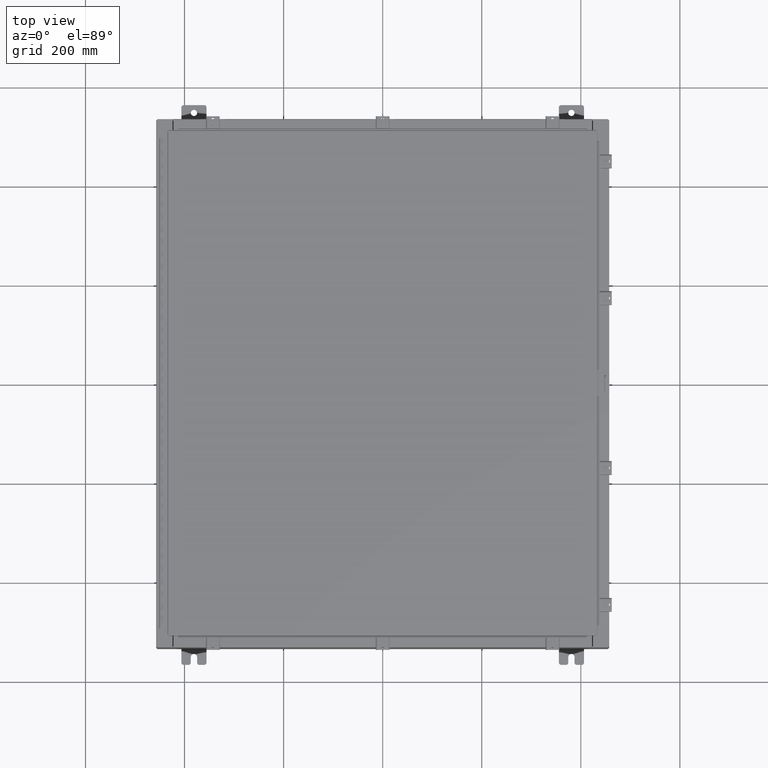
[diagram: clean part render]
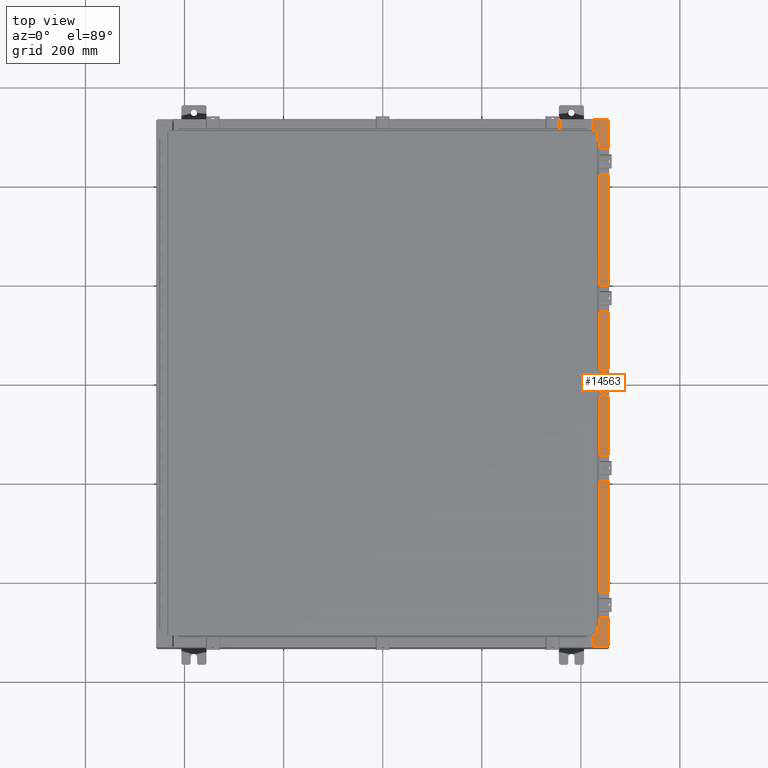
[diagram: same view with one face highlighted and labeled with its STEP entity id]
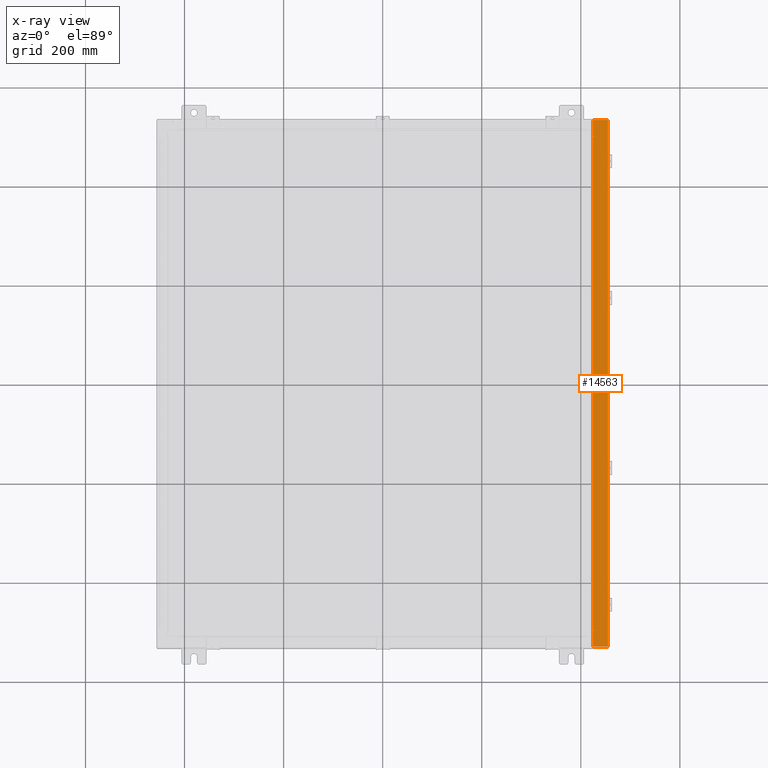
[diagram: x-ray of the same camera — body ghosted, the highlighted face saturated]
A machine part, top view. The second image highlights one B-rep face of the part: STEP entity #14563.
The next image is the same camera in x-ray: the body ghosted, the highlighted face saturated — about 0% of this face is hidden behind the body in this view.
In plain terms, the highlighted planar face has unit normal (-0, -0, -1).
Its self-contained STEP definition (entity closure, byte-faithful):
#519 = DIRECTION ( 'NONE',  ( 0.0000000000000000000, -1.000000000000000000, 2.611047864225856100E-017 ) ) ;
#613 = VECTOR ( 'NONE', #50008, 39.37007874015748100 ) ;
#768 = ORIENTED_EDGE ( 'NONE', *, *, #17446, .F. ) ;
#1595 = VECTOR ( 'NONE', #41818, 39.37007874015748100 ) ;
#1793 = EDGE_CURVE ( 'NONE', #47683, #48953, #27479, .T. ) ;
#2199 = EDGE_CURVE ( 'NONE', #8966, #16888, #39102, .T. ) ;
#2587 = DIRECTION ( 'NONE',  ( 1.000000000000000000, 0.0000000000000000000, 0.0000000000000000000 ) ) ;
#2992 = CARTESIAN_POINT ( 'NONE',  ( 16.69970000000003200, -19.63110000000000000, 7.925300000000008900 ) ) ;
#4834 = VERTEX_POINT ( 'NONE', #38482 ) ;
#5262 = CARTESIAN_POINT ( 'NONE',  ( 16.75005000000003400, -19.61242499999999800, 7.925300000000009800 ) ) ;
#5358 = VECTOR ( 'NONE', #22720, 39.37007874015748100 ) ;
#5363 = DIRECTION ( 'NONE',  ( -1.000000000000000000, 0.0000000000000000000, 0.0000000000000000000 ) ) ;
#5607 = DIRECTION ( 'NONE',  ( -1.000000000000000000, 4.340572780399910900E-014, -2.170286390199955400E-014 ) ) ;
#5868 = CARTESIAN_POINT ( 'NONE',  ( 17.91230000000002700, -20.92529999999999600, 7.925300000000000900 ) ) ;
#6629 = VECTOR ( 'NONE', #29541, 39.37007874015748100 ) ;
#6764 = EDGE_CURVE ( 'NONE', #23765, #30325, #38711, .T. ) ;
#7224 = EDGE_CURVE ( 'NONE', #43719, #8966, #11016, .T. ) ;
#8638 = AXIS2_PLACEMENT_3D ( 'NONE', #49659, #26072, #2587 ) ;
#8860 = EDGE_CURVE ( 'NONE', #4834, #38101, #15702, .T. ) ;
#8966 = VERTEX_POINT ( 'NONE', #41532 ) ;
#9185 = DIRECTION ( 'NONE',  ( 1.000000000000000000, 0.0000000000000000000, 0.0000000000000000000 ) ) ;
#9770 = CARTESIAN_POINT ( 'NONE',  ( 16.75005000000003400, -19.63109999999999600, 7.925300000000008900 ) ) ;
#10001 = CARTESIAN_POINT ( 'NONE',  ( 16.69970000000003200, 20.92529999999997900, 7.925300000000008900 ) ) ;
#10437 = CARTESIAN_POINT ( 'NONE',  ( 17.91230000000002700, 20.92529999999997500, 7.925300000000000000 ) ) ;
#10683 = CARTESIAN_POINT ( 'NONE',  ( 16.71270000000003400, -19.59375000000000000, 7.925300000000009800 ) ) ;
#10772 = LINE ( 'NONE', #14294, #1595 ) ;
#11016 = LINE ( 'NONE', #41935, #613 ) ;
#11708 = ORIENTED_EDGE ( 'NONE', *, *, #36753, .T. ) ;
#11728 = CARTESIAN_POINT ( 'NONE',  ( 4.972393517345230000E-014, 20.92529999999998600, 7.925300000000111900 ) ) ;
#12003 = VERTEX_POINT ( 'NONE', #14552 ) ;
#12528 = ORIENTED_EDGE ( 'NONE', *, *, #8860, .T. ) ;
#14150 = LINE ( 'NONE', #44708, #44320 ) ;
#14294 = CARTESIAN_POINT ( 'NONE',  ( 16.69970000000003200, 2.069333764128535100E-016, 7.925300000000008900 ) ) ;
#14410 = ORIENTED_EDGE ( 'NONE', *, *, #30887, .F. ) ;
#14552 = CARTESIAN_POINT ( 'NONE',  ( 16.69970000000003200, 19.63109999999997500, 7.925300000000008900 ) ) ;
#14563 = ADVANCED_FACE ( 'NONE', ( #27530 ), #42664, .F. ) ;
#15161 = CARTESIAN_POINT ( 'NONE',  ( 4.972393517345230000E-014, 2.069333764128535100E-016, 7.925300000000111900 ) ) ;
#15540 = VECTOR ( 'NONE', #519, 39.37007874015748100 ) ;
#15702 = LINE ( 'NONE', #33278, #27405 ) ;
#16000 = VERTEX_POINT ( 'NONE', #41984 ) ;
#16232 = LINE ( 'NONE', #40990, #26678 ) ;
#16888 = VERTEX_POINT ( 'NONE', #17289 ) ;
#17034 = LINE ( 'NONE', #5868, #6629 ) ;
#17289 = CARTESIAN_POINT ( 'NONE',  ( 16.75005000000003400, 19.63109999999998200, 7.925300000000007100 ) ) ;
#17446 = EDGE_CURVE ( 'NONE', #48953, #16000, #28896, .T. ) ;
#17611 = DIRECTION ( 'NONE',  ( 1.000000000000000000, 0.0000000000000000000, -6.241167087353087800E-015 ) ) ;
#18893 = ORIENTED_EDGE ( 'NONE', *, *, #2199, .F. ) ;
#19679 = CARTESIAN_POINT ( 'NONE',  ( 17.91230000000002700, -20.92529999999999600, 7.925300000000000900 ) ) ;
#20259 = CARTESIAN_POINT ( 'NONE',  ( 16.71270000000003400, 19.59374999999998200, 7.925300000000009800 ) ) ;
#20774 = ORIENTED_EDGE ( 'NONE', *, *, #7224, .F. ) ;
#21361 = EDGE_CURVE ( 'NONE', #30325, #12003, #36460, .T. ) ;
#21527 = EDGE_CURVE ( 'NONE', #28751, #43719, #29092, .T. ) ;
#22720 = DIRECTION ( 'NONE',  ( 1.000000000000000000, 4.340572780399910900E-014, 2.170286390199955400E-014 ) ) ;
#23063 = DIRECTION ( 'NONE',  ( -1.000000000000000000, 0.0000000000000000000, 6.241167087353086200E-015 ) ) ;
#23562 = DIRECTION ( 'NONE',  ( -1.000000000000000000, 0.0000000000000000000, 6.241167087353087800E-015 ) ) ;
#23765 = VERTEX_POINT ( 'NONE', #10437 ) ;
#24998 = CARTESIAN_POINT ( 'NONE',  ( 16.71270000000003400, -19.59375000000000000, 7.925300000000009800 ) ) ;
#25119 = ORIENTED_EDGE ( 'NONE', *, *, #1793, .F. ) ;
#25377 = EDGE_CURVE ( 'NONE', #23765, #38101, #17034, .T. ) ;
#26072 = DIRECTION ( 'NONE',  ( 6.241167087353086200E-015, 2.611047864225855500E-017, 1.000000000000000000 ) ) ;
#26678 = VECTOR ( 'NONE', #5607, 39.37007874015748100 ) ;
#27405 = VECTOR ( 'NONE', #17611, 39.37007874015748100 ) ;
#27479 = LINE ( 'NONE', #2992, #5358 ) ;
#27530 = FACE_OUTER_BOUND ( 'NONE', #47737, .T. ) ;
#28297 = VECTOR ( 'NONE', #23562, 39.37007874015748100 ) ;
#28751 = VERTEX_POINT ( 'NONE', #10683 ) ;
#28896 = CIRCLE ( 'NONE', #38471, 0.01867499999999949400 ) ;
#29092 = LINE ( 'NONE', #24998, #49995 ) ;
#29541 = DIRECTION ( 'NONE',  ( -0.0000000000000000000, -1.000000000000000000, 2.611047864225856100E-017 ) ) ;
#30325 = VERTEX_POINT ( 'NONE', #10001 ) ;
#30887 = EDGE_CURVE ( 'NONE', #16000, #28751, #14150, .T. ) ;
#30900 = CARTESIAN_POINT ( 'NONE',  ( 16.69970000000003200, -19.63110000000000000, 7.925300000000008900 ) ) ;
#32719 = DIRECTION ( 'NONE',  ( 6.241167087353086200E-015, 2.611047864225855500E-017, 1.000000000000000000 ) ) ;
#33278 = CARTESIAN_POINT ( 'NONE',  ( 4.972393517345230000E-014, -20.92529999999999600, 7.925300000000113700 ) ) ;
#34657 = EDGE_CURVE ( 'NONE', #16888, #12003, #16232, .T. ) ;
#36460 = LINE ( 'NONE', #47544, #15540 ) ;
#36682 = DIRECTION ( 'NONE',  ( -0.0000000000000000000, 1.000000000000000000, -0.0000000000000000000 ) ) ;
#36753 = EDGE_CURVE ( 'NONE', #47683, #4834, #10772, .T. ) ;
#38101 = VERTEX_POINT ( 'NONE', #19679 ) ;
#38423 = ORIENTED_EDGE ( 'NONE', *, *, #34657, .F. ) ;
#38471 = AXIS2_PLACEMENT_3D ( 'NONE', #5262, #32719, #9185 ) ;
#38482 = CARTESIAN_POINT ( 'NONE',  ( 16.69970000000003200, -20.92529999999999600, 7.925300000000009800 ) ) ;
#38711 = LINE ( 'NONE', #11728, #28297 ) ;
#39102 = CIRCLE ( 'NONE', #8638, 0.01867499999999949400 ) ;
#40792 = ORIENTED_EDGE ( 'NONE', *, *, #21527, .F. ) ;
#40990 = CARTESIAN_POINT ( 'NONE',  ( 16.75005000000003400, 19.63109999999998200, 7.925300000000009800 ) ) ;
#41532 = CARTESIAN_POINT ( 'NONE',  ( 16.75005000000003400, 19.59374999999998200, 7.925300000000007100 ) ) ;
#41818 = DIRECTION ( 'NONE',  ( 0.0000000000000000000, -1.000000000000000000, 2.611047864225856100E-017 ) ) ;
#41935 = CARTESIAN_POINT ( 'NONE',  ( 16.71270000000003400, 19.59374999999998200, 7.925300000000009800 ) ) ;
#41984 = CARTESIAN_POINT ( 'NONE',  ( 16.75005000000003400, -19.59375000000000000, 7.925300000000007100 ) ) ;
#42664 = PLANE ( 'NONE',  #46639 ) ;
#42672 = ORIENTED_EDGE ( 'NONE', *, *, #6764, .T. ) ;
#43719 = VERTEX_POINT ( 'NONE', #20259 ) ;
#44320 = VECTOR ( 'NONE', #5363, 39.37007874015748100 ) ;
#44708 = CARTESIAN_POINT ( 'NONE',  ( 16.75005000000003400, -19.59375000000000000, 7.925300000000009800 ) ) ;
#45656 = ORIENTED_EDGE ( 'NONE', *, *, #25377, .F. ) ;
#46568 = ORIENTED_EDGE ( 'NONE', *, *, #21361, .T. ) ;
#46636 = DIRECTION ( 'NONE',  ( -6.241167087353086200E-015, -2.611047864225855500E-017, -1.000000000000000000 ) ) ;
#46639 = AXIS2_PLACEMENT_3D ( 'NONE', #15161, #46636, #23063 ) ;
#47544 = CARTESIAN_POINT ( 'NONE',  ( 16.69970000000003200, 2.069333764128535100E-016, 7.925300000000008900 ) ) ;
#47683 = VERTEX_POINT ( 'NONE', #30900 ) ;
#47737 = EDGE_LOOP ( 'NONE', ( #25119, #11708, #12528, #45656, #42672, #46568, #38423, #18893, #20774, #40792, #14410, #768 ) ) ;
#48953 = VERTEX_POINT ( 'NONE', #9770 ) ;
#49659 = CARTESIAN_POINT ( 'NONE',  ( 16.75005000000003400, 19.61242499999998000, 7.925300000000009800 ) ) ;
#49995 = VECTOR ( 'NONE', #36682, 39.37007874015748100 ) ;
#50008 = DIRECTION ( 'NONE',  ( 1.000000000000000000, 0.0000000000000000000, 0.0000000000000000000 ) ) ;